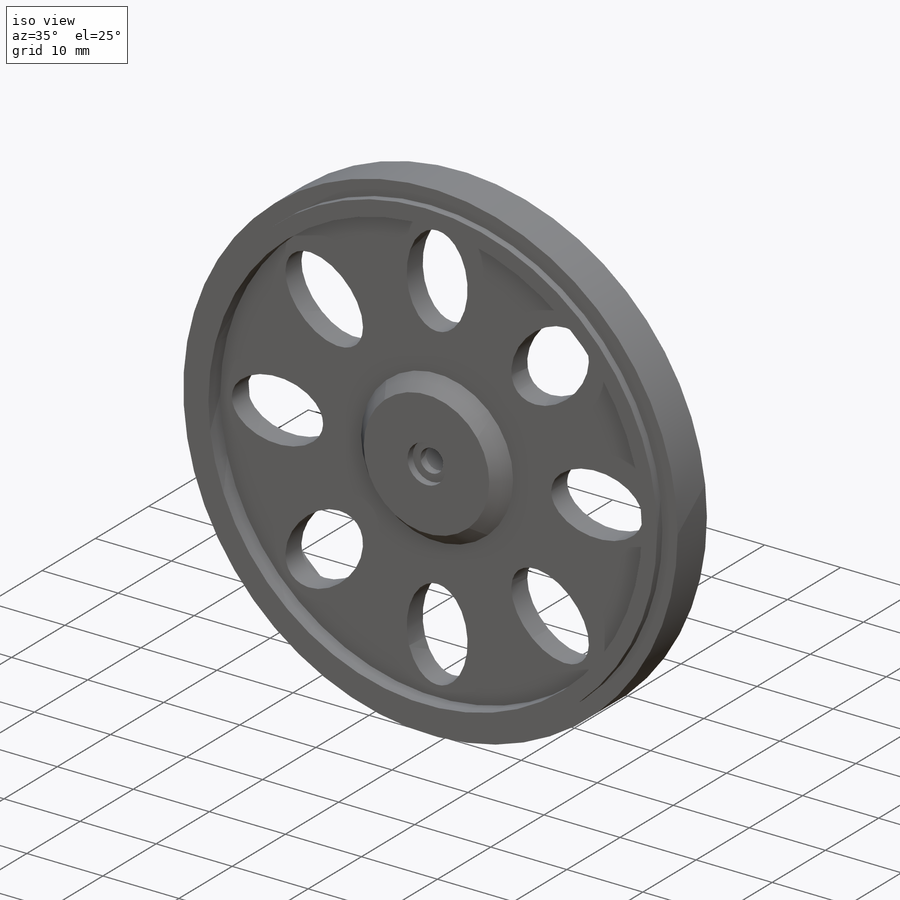
[diagram: iso view]
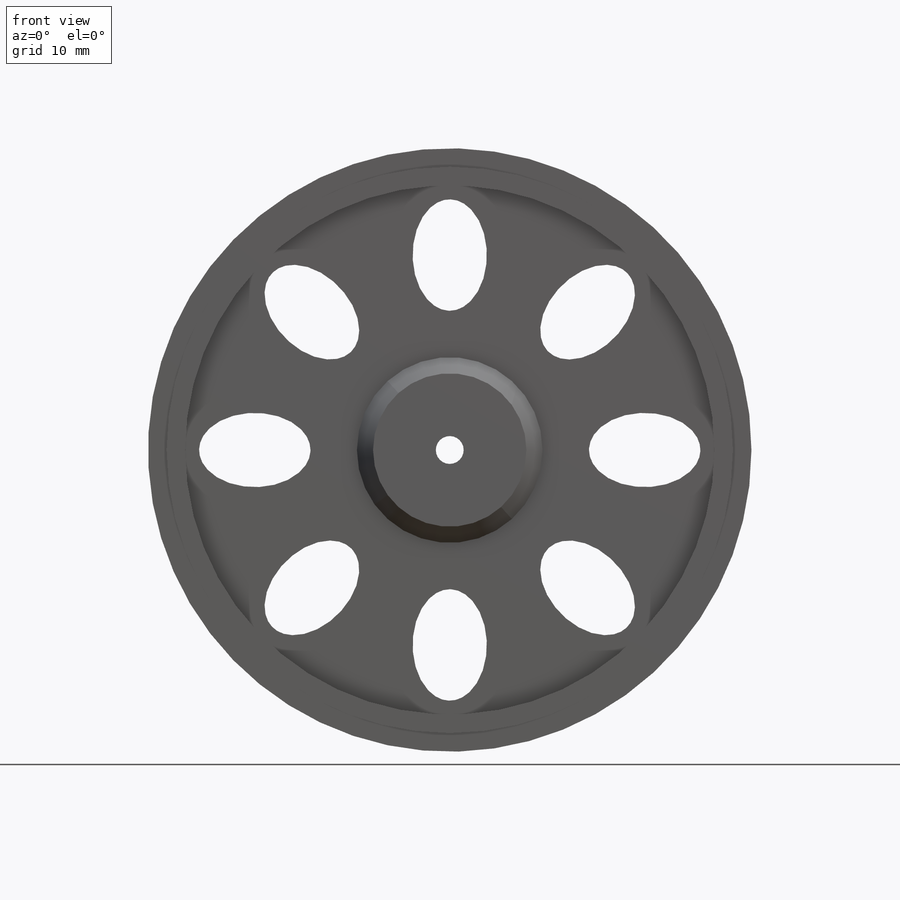
[diagram: front view]
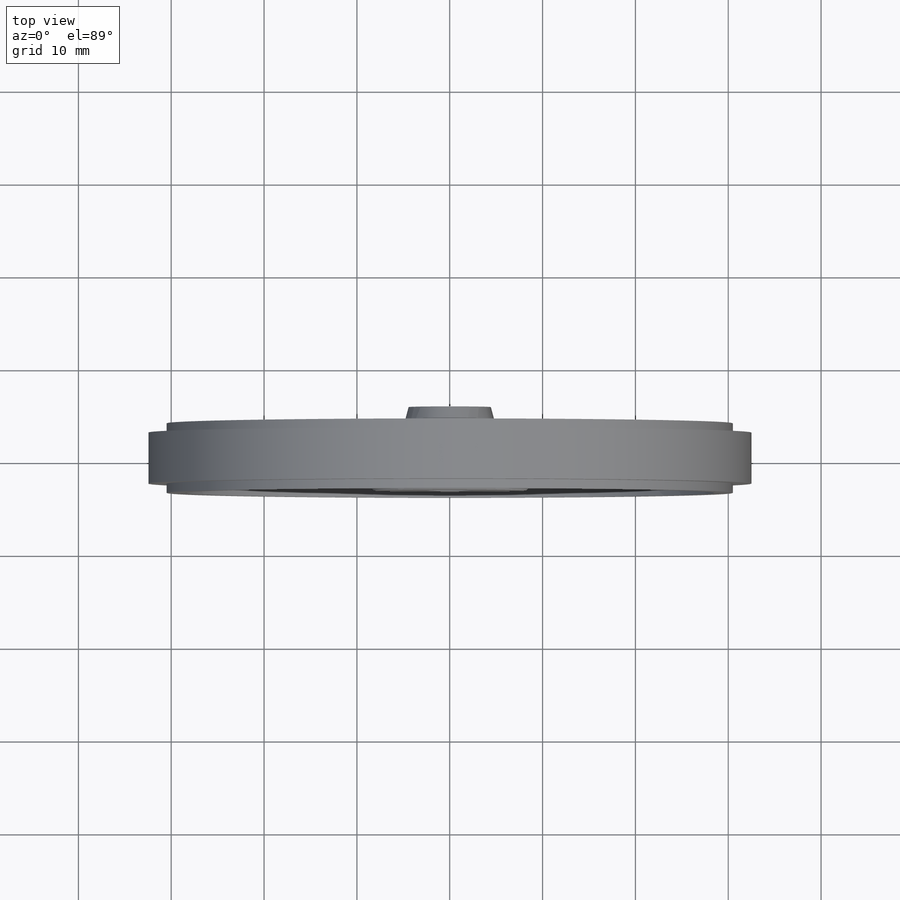
[diagram: top view]
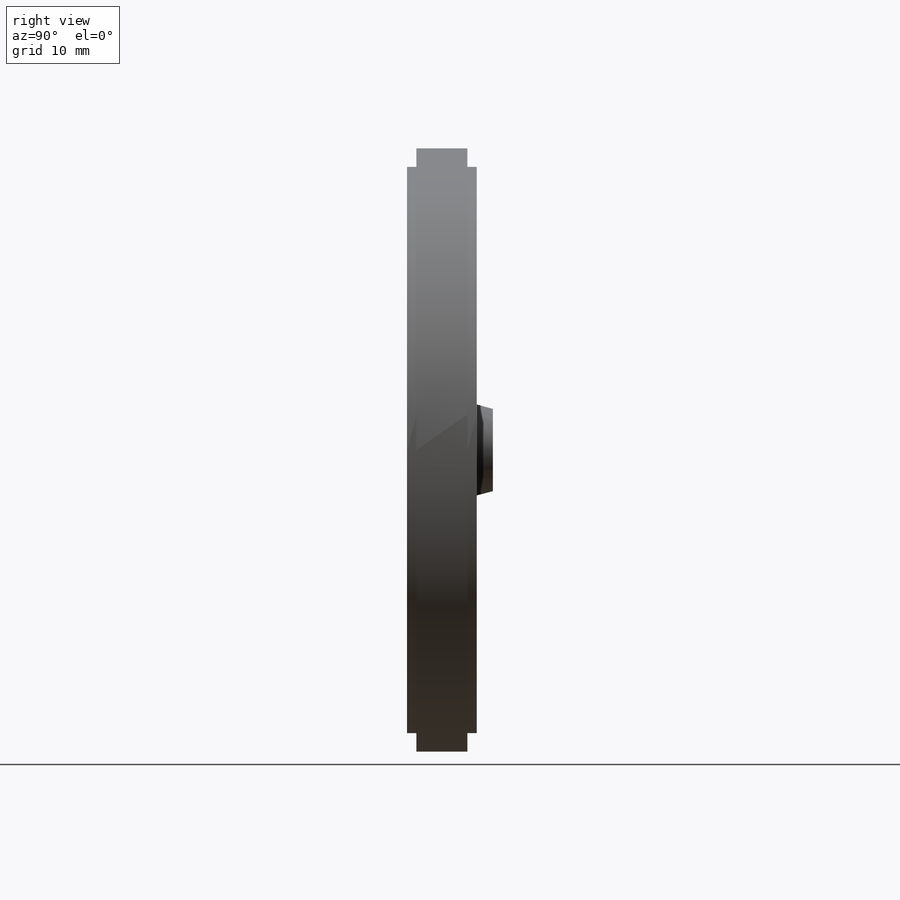
[diagram: right view]
SOLIDWORKS PART (.sldprt)
format: sldprt  version: not decoded by parser v0  size: 261,632 bytes
history: native  units: mm
features: sketch x7, cut_extrude x4, extrude x2, material x1, revolve x1, pattern_circular x1 (+12 scaffold rows collapsed)
feature tree (28):
  scaffold x12  (default folders/planes/origin — collapsed)
  material  "Material <not specified>"
  sketch  "Sketch1"  dims[c1.D1=3.75mm c1.D2=2.0mm c1.D3=2.0mm c1.D4=2.75mm c2.D1=7.5mm c2.D5=32.5mm c2.D6=1.5mm c3.D5=32.5mm]
  revolve  "Revolve1"  Angle=360deg
  sketch  "Sketch2"  dims[D1=20.0mm]
  extrude  "Extrude1"  Depth=2mm
  sketch  "Sketch3"  dims[D1=11.0mm]
  extrude  "Extrude2"  Depth=4mm
  sketch  "Sketch4"  dims[D1=5.0mm]
  cut_extrude  "Extrude3"  Depth=1mm
  sketch  "Sketch5"  dims[D1=3.0mm]
  cut_extrude  "Extrude4"  Depth=15mm
  sketch  "Sketch6"  dims[D1=8.0mm D2=12.0mm D3=15.0mm]
  cut_extrude  "Extrude5"  Depth=15mm
  pattern_circular  "CirPattern2"  Count=8 Angle=45deg
  sketch  "Sketch7"  dims[D1=5.5mm]
  cut_extrude  "Extrude6"  Depth=7mm
decode coverage: 15 of 15 modeling features carry decoded parameters
note: suppression state not decoded; provenance and decode notes live in map.json
